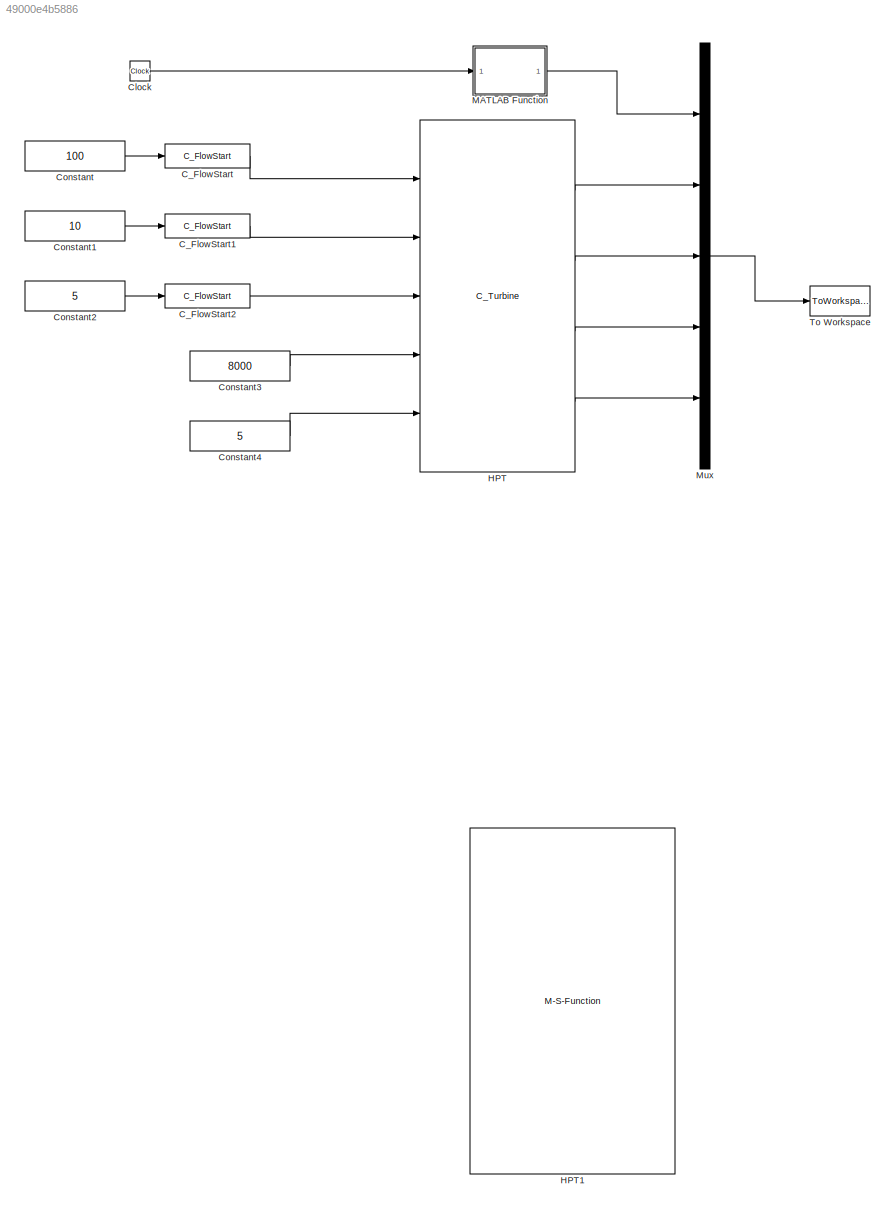
MODEL slx_49000e4b5886
KIND model
CONFIG AbsTol = auto
CONFIG EnableMultiTasking = on
CONFIG FixedStep = auto
CONFIG MaxStep = auto
CONFIG MinStep = auto
CONFIG RelTol = 1e-3
CONFIG SampleTimeConstraint = Unconstrained
CONFIG Solver = ode45
CONFIG SolverName = ode45
CONFIG StartTime = 0.0
CONFIG StopTime = 10.0
BLOCK [Reference] C_FlowStart  REF=Lib_TurboC_FlowStart_TMATSC/C_FlowStart
  Ports = [1, 1]
  SourceBlock = Lib_TurboC_FlowStart_TMATSC/C_FlowStart
  SourceType = TMATS: Flow Start Library Block, cantera
BLOCK [Reference] C_FlowStart1  REF=Lib_TurboC_FlowStart_TMATSC/C_FlowStart
  Ports = [1, 1]
  SourceBlock = Lib_TurboC_FlowStart_TMATSC/C_FlowStart
  SourceType = TMATS: Flow Start Library Block, cantera
BLOCK [Reference] C_FlowStart2  REF=Lib_TurboC_FlowStart_TMATSC/C_FlowStart
  Ports = [1, 1]
  SourceBlock = Lib_TurboC_FlowStart_TMATSC/C_FlowStart
  SourceType = TMATS: Flow Start Library Block, cantera
BLOCK [Clock] Clock
BLOCK [Constant] Constant
  Value = 100
BLOCK [Constant] Constant1
  Value = 10
BLOCK [Constant] Constant2
  Value = 5
BLOCK [Constant] Constant3
  Value = 8000
BLOCK [Constant] Constant4
  Value = 5
BLOCK [Reference] HPT  REF=Lib_TurboC_Turbine_TMATSC/C_Turbine
  Ports = [5, 4]
  SourceBlock = Lib_TurboC_Turbine_TMATSC/C_Turbine
  SourceType = T-MATS: Turbine Library Block, cantera
BLOCK [M-S-Function] HPT1
  Commented = on
  FunctionName = TMATSC_turbine
  Parameters = MapFile_M ,NcDes_M ,effDes_M ,PRmapDes_M ,Ndes_M ,BSW1_M ,BSW2_M ,s_eff_M ,s_Wc_M ,s_C_Nc_M ,s_PR_M ,IDes_M
  Ports = [5, 4]
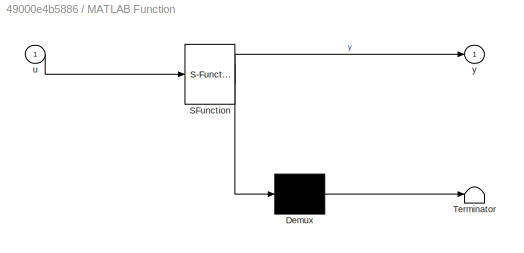
BLOCK [SubSystem] MATLAB Function
  ErrorFcn = Stateflow.Translate.translate
  PermitHierarchicalResolution = ExplicitOnly
  Ports = [1, 1]
  RequestExecContextInheritance = off
  SFBlockType = MATLAB Function
  TreatAsAtomicUnit = on
BLOCK [Demux] MATLAB Function/ Demux 
  Outputs = 1
  Ports = [1, 1]
BLOCK [S-Function] MATLAB Function/ SFunction 
  EnableBusSupport = off
  FunctionName = sf_sfun
  PortCounts = [1 2]
  Ports = [1, 2]
  SFcnIsStateOwnerBlock = off
  SFunctionDeploymentMode = off
  Tag = Stateflow S-Function 2
BLOCK [Terminator] MATLAB Function/ Terminator 
BLOCK [Inport] MATLAB Function/u
  IconDisplay = Port number
BLOCK [Outport] MATLAB Function/y
  IconDisplay = Port number
BLOCK [Mux] Mux
  DisplayOption = bar
  Inputs = 5
  Ports = [5, 1]
BLOCK [ToWorkspace] To Workspace
  MaxDataPoints = inf
  Ports = [1]
  SampleTime = -1
  SaveFormat = Timeseries
  VariableName = simout
LINE C_FlowStart1:1 -> HPT:2
LINE C_FlowStart2:1 -> HPT:3
LINE C_FlowStart:1 -> HPT:1
LINE Clock:1 -> MATLAB Function:1
LINE Constant1:1 -> C_FlowStart1:1
LINE Constant2:1 -> C_FlowStart2:1
LINE Constant3:1 -> HPT:4
LINE Constant4:1 -> HPT:5
LINE Constant:1 -> C_FlowStart:1
LINE HPT:1 -> Mux:2
LINE HPT:2 -> Mux:3
LINE HPT:3 -> Mux:4
LINE HPT:4 -> Mux:5
LINE MATLAB Function:1 -> Mux:1
LINE Mux:1 -> To Workspace:1
CHART MATLAB Function states=1 transitions=1
  STATE_LABEL 'eML_blk_kernel()'
  STATE_LABEL "SCRIPT:\nfunction y = fcn(u)\n%#codegen\neml.extrinsic('set_param');\nif u < 3\n   set_param('TestTurbine/HPT','IDes_M','0');\nelseif u< 6 \n   set_param('TestTurbine/HPT','IDes_M','1'); \nelse \n   set_param('TestTurbine/HPT','IDes_M','2'); \nend    \ny = u;"
